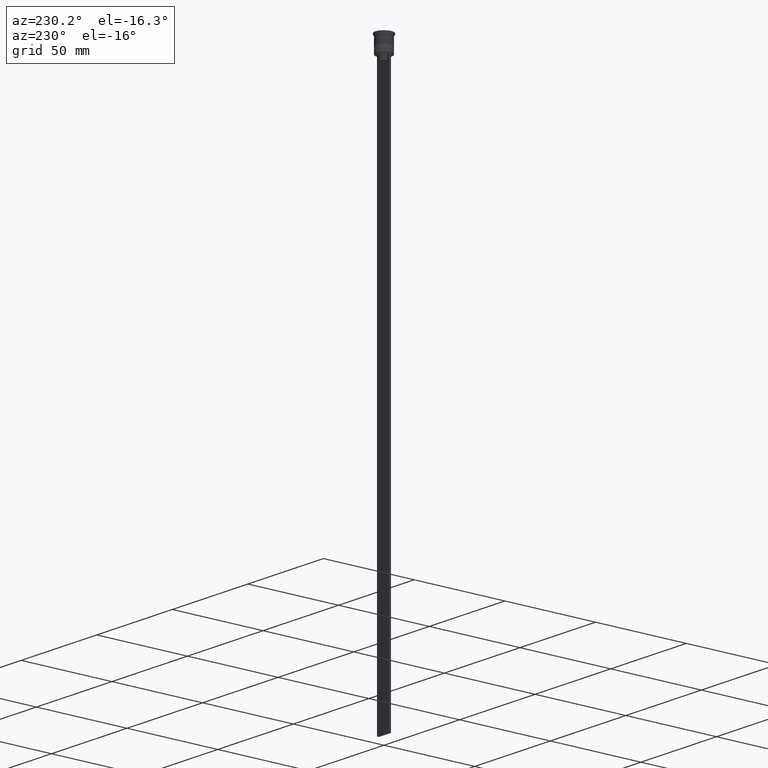
[diagram: clean part render]
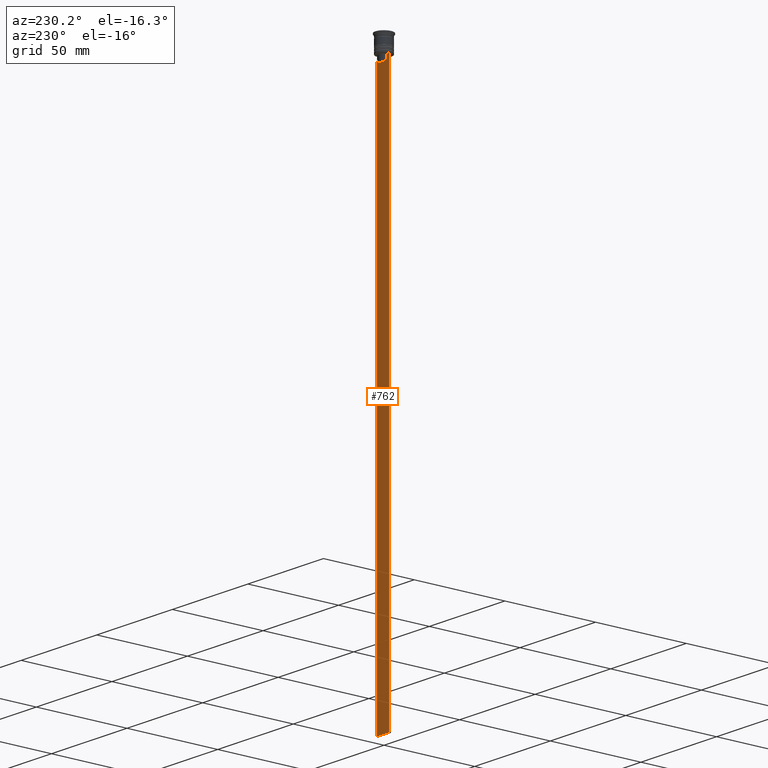
[diagram: same view with one face highlighted and labeled with its STEP entity id]
A machine part, auxiliary view. The second image highlights one B-rep face of the part: STEP entity #762.
In plain terms, the highlighted planar face has unit normal (0, -1, -0).
Its self-contained STEP definition (entity closure, byte-faithful):
#26 = VERTEX_POINT ( 'NONE', #2380 ) ;
#87 = FACE_OUTER_BOUND ( 'NONE', #108, .T. ) ;
#90 = CARTESIAN_POINT ( 'NONE',  ( 0.000000000000000000, 0.4999999999999995559, -12.50000000000000000 ) ) ;
#97 = VERTEX_POINT ( 'NONE', #1602 ) ;
#108 = EDGE_LOOP ( 'NONE', ( #792, #952, #361, #1395, #840, #2371, #1004, #1381, #1151, #2246 ) ) ;
#123 = CARTESIAN_POINT ( 'NONE',  ( 4.000000000000005329, 0.4999999999999995559, -309.5000000000000000 ) ) ;
#126 = CARTESIAN_POINT ( 'NONE',  ( -2.941047749529105193, 0.4999999999999995559, -9.666873766989334982 ) ) ;
#168 = VECTOR ( 'NONE', #738, 1000.000000000000000 ) ;
#169 = CARTESIAN_POINT ( 'NONE',  ( 4.000000000000005329, 0.4999999999999995559, -9.500000000000000000 ) ) ;
#194 = LINE ( 'NONE', #411, #2024 ) ;
#217 = VERTEX_POINT ( 'NONE', #1662 ) ;
#225 = CARTESIAN_POINT ( 'NONE',  ( -2.602402735934617350, 0.4999999999999995559, -10.00000000000000178 ) ) ;
#239 = VERTEX_POINT ( 'NONE', #225 ) ;
#285 = VECTOR ( 'NONE', #1760, 1000.000000000000000 ) ;
#330 = EDGE_CURVE ( 'NONE', #97, #1672, #2124, .T. ) ;
#361 = ORIENTED_EDGE ( 'NONE', *, *, #2241, .T. ) ;
#363 = CARTESIAN_POINT ( 'NONE',  ( 2.771864055700302476, 0.4999999999999995559, -9.833582414266677674 ) ) ;
#411 = CARTESIAN_POINT ( 'NONE',  ( -2.602402735934617350, 0.4999999999999995559, 0.000000000000000000 ) ) ;
#467 = EDGE_CURVE ( 'NONE', #217, #906, #1805, .T. ) ;
#487 = CARTESIAN_POINT ( 'NONE',  ( -3.110064308016796897, 0.4999999999999995559, -9.500000000000000000 ) ) ;
#497 = EDGE_CURVE ( 'NONE', #1823, #239, #1639, .T. ) ;
#524 = CARTESIAN_POINT ( 'NONE',  ( 2.602402735934617350, 0.4999999999999995559, 0.000000000000000000 ) ) ;
#571 = DIRECTION ( 'NONE',  ( 1.000000000000000000, 0.000000000000000000, 0.000000000000000000 ) ) ;
#608 = EDGE_CURVE ( 'NONE', #1668, #2107, #1057, .T. ) ;
#685 = CARTESIAN_POINT ( 'NONE',  ( 2.602402735934617350, 0.4999999999999995559, -12.50000000000000000 ) ) ;
#706 = VECTOR ( 'NONE', #2165, 1000.000000000000000 ) ;
#719 = CARTESIAN_POINT ( 'NONE',  ( -2.602402735934617350, 0.4999999999999995559, -10.00000000000000178 ) ) ;
#738 = DIRECTION ( 'NONE',  ( -1.000000000000000000, 0.000000000000000000, 0.000000000000000000 ) ) ;
#762 = ADVANCED_FACE ( 'NONE', ( #87 ), #2279, .F. ) ;
#792 = ORIENTED_EDGE ( 'NONE', *, *, #2295, .T. ) ;
#814 = VECTOR ( 'NONE', #1237, 1000.000000000000000 ) ;
#840 = ORIENTED_EDGE ( 'NONE', *, *, #2110, .T. ) ;
#894 = VECTOR ( 'NONE', #1389, 1000.000000000000000 ) ;
#906 = VERTEX_POINT ( 'NONE', #123 ) ;
#922 = DIRECTION ( 'NONE',  ( 0.000000000000000000, 0.000000000000000000, -1.000000000000000000 ) ) ;
#952 = ORIENTED_EDGE ( 'NONE', *, *, #497, .T. ) ;
#1004 = ORIENTED_EDGE ( 'NONE', *, *, #2075, .T. ) ;
#1028 = CARTESIAN_POINT ( 'NONE',  ( 4.000000000000005329, 0.4999999999999995559, -1.437742251701450202 ) ) ;
#1036 = EDGE_CURVE ( 'NONE', #906, #1134, #2226, .T. ) ;
#1040 = CARTESIAN_POINT ( 'NONE',  ( 4.000000000000005329, 0.4999999999999995559, -1.437742251701450202 ) ) ;
#1057 = B_SPLINE_CURVE_WITH_KNOTS ( 'NONE', 3,
 ( #2015, #363, #1696, #1099 ),
 .UNSPECIFIED., .F., .F.,
 ( 4, 4 ),
 ( 0.01295151922336847637, 0.01367164596165162602 ),
 .UNSPECIFIED. ) ;
#1071 = CARTESIAN_POINT ( 'NONE',  ( -2.771866350855961780, 0.4999999999999995559, -9.833580160334840059 ) ) ;
#1099 = CARTESIAN_POINT ( 'NONE',  ( 3.110064308016796897, 0.4999999999999995559, -9.500000000000000000 ) ) ;
#1134 = VERTEX_POINT ( 'NONE', #1532 ) ;
#1151 = ORIENTED_EDGE ( 'NONE', *, *, #1036, .T. ) ;
#1187 = CARTESIAN_POINT ( 'NONE',  ( -3.999999999999994671, 0.4999999999999995559, -1.437742251701450202 ) ) ;
#1223 = CARTESIAN_POINT ( 'NONE',  ( 3.110064308016796897, 0.4999999999999995559, -9.500000000000000000 ) ) ;
#1237 = DIRECTION ( 'NONE',  ( 0.000000000000000000, 0.000000000000000000, -1.000000000000000000 ) ) ;
#1275 = CARTESIAN_POINT ( 'NONE',  ( 4.000000000000005329, 0.4999999999999995559, -9.500000000000000000 ) ) ;
#1381 = ORIENTED_EDGE ( 'NONE', *, *, #467, .T. ) ;
#1389 = DIRECTION ( 'NONE',  ( 1.000000000000000000, 0.000000000000000000, 0.000000000000000000 ) ) ;
#1395 = ORIENTED_EDGE ( 'NONE', *, *, #330, .T. ) ;
#1484 = AXIS2_PLACEMENT_3D ( 'NONE', #1028, #1717, #1560 ) ;
#1528 = VECTOR ( 'NONE', #571, 1000.000000000000000 ) ;
#1532 = CARTESIAN_POINT ( 'NONE',  ( -3.999999999999994671, 0.4999999999999995559, -309.5000000000000000 ) ) ;
#1560 = DIRECTION ( 'NONE',  ( 0.000000000000000000, 0.000000000000000000, -1.000000000000000000 ) ) ;
#1589 = EDGE_CURVE ( 'NONE', #26, #1134, #2125, .T. ) ;
#1602 = CARTESIAN_POINT ( 'NONE',  ( -2.602402735934617350, 0.4999999999999995559, -12.50000000000000000 ) ) ;
#1639 = B_SPLINE_CURVE_WITH_KNOTS ( 'NONE', 3,
 ( #487, #126, #1071, #719 ),
 .UNSPECIFIED., .F., .F.,
 ( 4, 4 ),
 ( 0.005378271293598279809, 0.006090816219555997280 ),
 .UNSPECIFIED. ) ;
#1662 = CARTESIAN_POINT ( 'NONE',  ( 4.000000000000005329, 0.4999999999999995559, -9.500000000000000000 ) ) ;
#1668 = VERTEX_POINT ( 'NONE', #1815 ) ;
#1672 = VERTEX_POINT ( 'NONE', #685 ) ;
#1696 = CARTESIAN_POINT ( 'NONE',  ( 2.941045828809989438, 0.4999999999999995559, -9.666875663357577864 ) ) ;
#1717 = DIRECTION ( 'NONE',  ( 0.000000000000000000, -1.000000000000000000, -0.000000000000000000 ) ) ;
#1760 = DIRECTION ( 'NONE',  ( 0.000000000000000000, 0.000000000000000000, -1.000000000000000000 ) ) ;
#1777 = LINE ( 'NONE', #524, #706 ) ;
#1805 = LINE ( 'NONE', #1040, #814 ) ;
#1815 = CARTESIAN_POINT ( 'NONE',  ( 2.602402735934617350, 0.4999999999999995559, -10.00000000000000178 ) ) ;
#1822 = DIRECTION ( 'NONE',  ( 1.000000000000000000, 0.000000000000000000, 0.000000000000000000 ) ) ;
#1823 = VERTEX_POINT ( 'NONE', #2054 ) ;
#1985 = VECTOR ( 'NONE', #1822, 1000.000000000000000 ) ;
#2015 = CARTESIAN_POINT ( 'NONE',  ( 2.602402735934617350, 0.4999999999999995559, -10.00000000000000178 ) ) ;
#2024 = VECTOR ( 'NONE', #922, 1000.000000000000000 ) ;
#2054 = CARTESIAN_POINT ( 'NONE',  ( -3.110064308016796897, 0.4999999999999995559, -9.500000000000000000 ) ) ;
#2075 = EDGE_CURVE ( 'NONE', #2107, #217, #2342, .T. ) ;
#2107 = VERTEX_POINT ( 'NONE', #1223 ) ;
#2110 = EDGE_CURVE ( 'NONE', #1672, #1668, #1777, .T. ) ;
#2124 = LINE ( 'NONE', #90, #894 ) ;
#2125 = LINE ( 'NONE', #1187, #285 ) ;
#2165 = DIRECTION ( 'NONE',  ( -0.000000000000000000, -0.000000000000000000, 1.000000000000000000 ) ) ;
#2226 = LINE ( 'NONE', #2383, #168 ) ;
#2227 = LINE ( 'NONE', #1275, #1528 ) ;
#2241 = EDGE_CURVE ( 'NONE', #239, #97, #194, .T. ) ;
#2246 = ORIENTED_EDGE ( 'NONE', *, *, #1589, .F. ) ;
#2279 = PLANE ( 'NONE',  #1484 ) ;
#2295 = EDGE_CURVE ( 'NONE', #26, #1823, #2227, .T. ) ;
#2342 = LINE ( 'NONE', #169, #1985 ) ;
#2371 = ORIENTED_EDGE ( 'NONE', *, *, #608, .T. ) ;
#2380 = CARTESIAN_POINT ( 'NONE',  ( -3.999999999999994671, 0.4999999999999997780, -9.500000000000000000 ) ) ;
#2383 = CARTESIAN_POINT ( 'NONE',  ( 4.000000000000005329, 0.4999999999999995559, -309.5000000000000000 ) ) ;